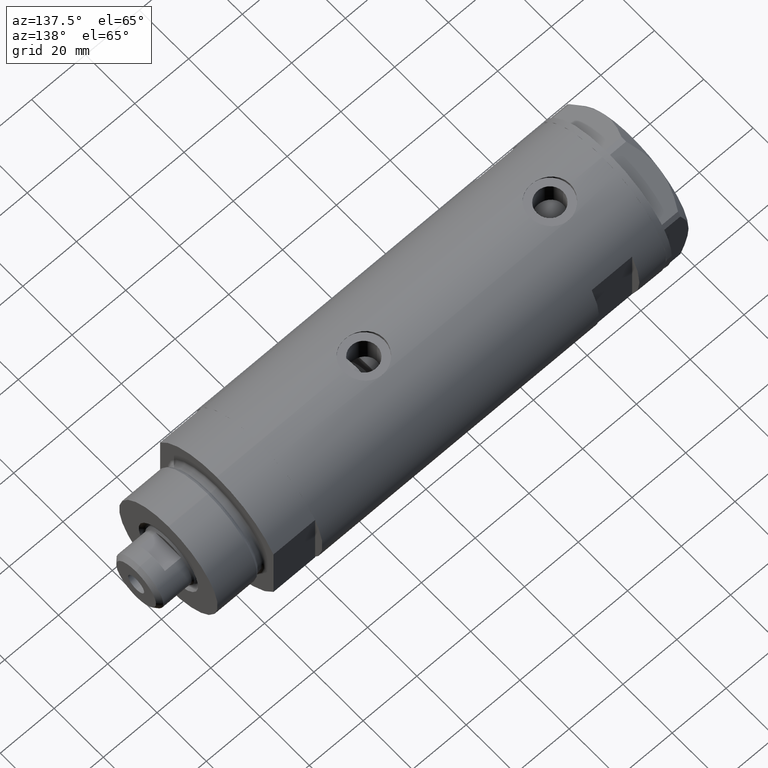
[diagram: clean part render]
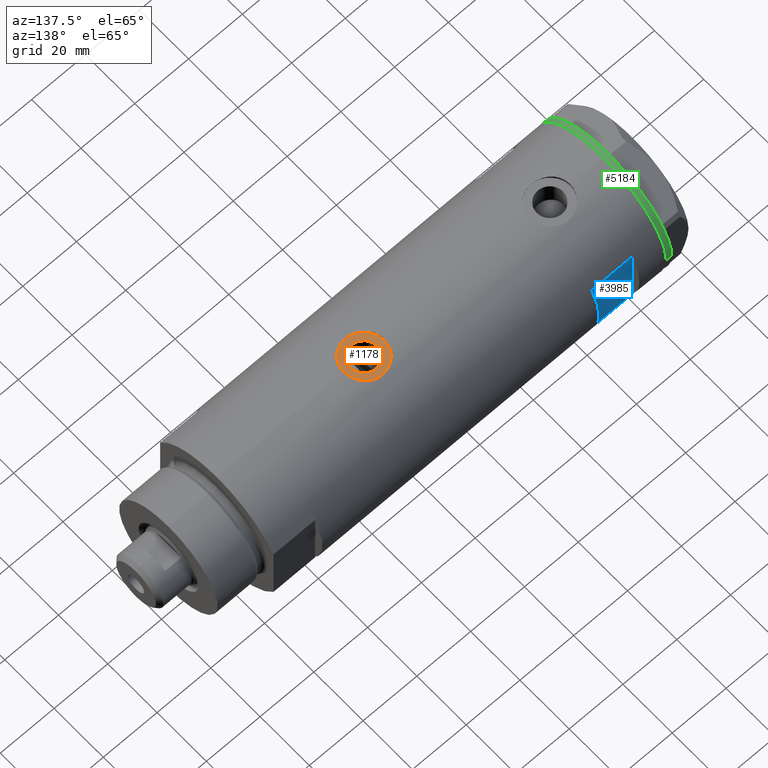
[diagram: same view with three faces highlighted in distinct colors, each labeled with its STEP entity id]
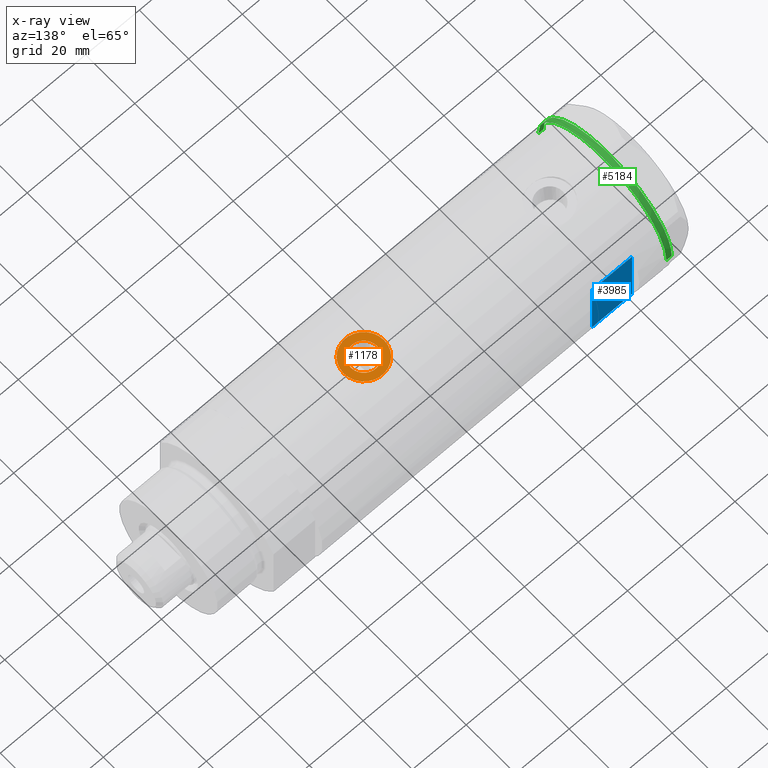
[diagram: x-ray of the same camera — body ghosted, the three highlighted faces saturated]
A machine part, auxiliary view with three faces highlighted in distinct colors.
The next image is the same camera in x-ray (body ghosted, the three faces saturated) — at least one of them is partly hidden behind the body in this view.
Their STEP definitions:

[orange] entity #1178 — the highlighted planar face has unit normal (0, 0, 1).
#174 = ORIENTED_EDGE ( 'NONE', *, *, #440, .F. ) ;
#217 = CIRCLE ( 'NONE', #3491, 4.865000000000001101 ) ;
#322 = FACE_OUTER_BOUND ( 'NONE', #427, .T. ) ;
#365 = CARTESIAN_POINT ( 'NONE',  ( 24.80000000000000426, 0.000000000000000000, -24.75000000000000000 ) ) ;
#427 = EDGE_LOOP ( 'NONE', ( #1320, #845 ) ) ;
#440 = EDGE_CURVE ( 'NONE', #2011, #3197, #1627, .T. ) ;
#441 = CARTESIAN_POINT ( 'NONE',  ( 24.80000000000000426, 9.184850993605147944E-16, -17.25000000000000000 ) ) ;
#740 = DIRECTION ( 'NONE',  ( 1.000000000000000000, 0.000000000000000000, 0.000000000000000000 ) ) ;
#815 = CARTESIAN_POINT ( 'NONE',  ( 24.80000000000000426, 0.000000000000000000, -24.75000000000000000 ) ) ;
#845 = ORIENTED_EDGE ( 'NONE', *, *, #946, .T. ) ;
#946 = EDGE_CURVE ( 'NONE', #1312, #2045, #3074, .T. ) ;
#1165 = EDGE_CURVE ( 'NONE', #3197, #2011, #217, .T. ) ;
#1178 = ADVANCED_FACE ( 'NONE', ( #3931, #322 ), #4351, .T. ) ;
#1312 = VERTEX_POINT ( 'NONE', #441 ) ;
#1320 = ORIENTED_EDGE ( 'NONE', *, *, #3925, .T. ) ;
#1408 = CARTESIAN_POINT ( 'NONE',  ( 24.80000000000000426, 0.000000000000000000, -24.75000000000000000 ) ) ;
#1477 = AXIS2_PLACEMENT_3D ( 'NONE', #365, #740, #1976 ) ;
#1627 = CIRCLE ( 'NONE', #4903, 4.865000000000001101 ) ;
#1976 = DIRECTION ( 'NONE',  ( 0.000000000000000000, 0.000000000000000000, -1.000000000000000000 ) ) ;
#2011 = VERTEX_POINT ( 'NONE', #4677 ) ;
#2045 = VERTEX_POINT ( 'NONE', #2764 ) ;
#2154 = CIRCLE ( 'NONE', #3832, 7.500000000000000000 ) ;
#2166 = DIRECTION ( 'NONE',  ( 1.000000000000000000, 0.000000000000000000, 0.000000000000000000 ) ) ;
#2489 = DIRECTION ( 'NONE',  ( 1.000000000000000000, 0.000000000000000000, 0.000000000000000000 ) ) ;
#2614 = DIRECTION ( 'NONE',  ( 0.000000000000000000, 0.000000000000000000, -1.000000000000000000 ) ) ;
#2764 = CARTESIAN_POINT ( 'NONE',  ( 24.80000000000000426, 0.000000000000000000, -32.25000000000000000 ) ) ;
#3074 = CIRCLE ( 'NONE', #3569, 7.500000000000000000 ) ;
#3197 = VERTEX_POINT ( 'NONE', #4712 ) ;
#3213 = EDGE_LOOP ( 'NONE', ( #174, #3671 ) ) ;
#3491 = AXIS2_PLACEMENT_3D ( 'NONE', #815, #3953, #5130 ) ;
#3569 = AXIS2_PLACEMENT_3D ( 'NONE', #4929, #2489, #3748 ) ;
#3671 = ORIENTED_EDGE ( 'NONE', *, *, #1165, .F. ) ;
#3748 = DIRECTION ( 'NONE',  ( 0.000000000000000000, 0.000000000000000000, -1.000000000000000000 ) ) ;
#3832 = AXIS2_PLACEMENT_3D ( 'NONE', #3946, #5066, #5098 ) ;
#3925 = EDGE_CURVE ( 'NONE', #2045, #1312, #2154, .T. ) ;
#3931 = FACE_BOUND ( 'NONE', #3213, .T. ) ;
#3946 = CARTESIAN_POINT ( 'NONE',  ( 24.80000000000000426, 0.000000000000000000, -24.75000000000000000 ) ) ;
#3953 = DIRECTION ( 'NONE',  ( 1.000000000000000000, 0.000000000000000000, 0.000000000000000000 ) ) ;
#4351 = PLANE ( 'NONE',  #1477 ) ;
#4677 = CARTESIAN_POINT ( 'NONE',  ( 24.80000000000000426, 0.000000000000000000, -29.61500000000000199 ) ) ;
#4712 = CARTESIAN_POINT ( 'NONE',  ( 24.80000000000000426, 5.957906677851871624E-16, -19.88500000000000156 ) ) ;
#4903 = AXIS2_PLACEMENT_3D ( 'NONE', #1408, #2166, #2614 ) ;
#4929 = CARTESIAN_POINT ( 'NONE',  ( 24.80000000000000426, 0.000000000000000000, -24.75000000000000000 ) ) ;
#5066 = DIRECTION ( 'NONE',  ( 1.000000000000000000, 0.000000000000000000, 0.000000000000000000 ) ) ;
#5098 = DIRECTION ( 'NONE',  ( 0.000000000000000000, 0.000000000000000000, -1.000000000000000000 ) ) ;
#5130 = DIRECTION ( 'NONE',  ( 0.000000000000000000, 0.000000000000000000, -1.000000000000000000 ) ) ;

[blue] entity #3985 — the highlighted planar face has unit normal (0, -1, -0).
#8 = EDGE_CURVE ( 'NONE', #3560, #4025, #278, .T. ) ;
#26 = DIRECTION ( 'NONE',  ( 1.000000000000000000, -0.000000000000000000, -0.000000000000000000 ) ) ;
#222 = VECTOR ( 'NONE', #1108, 1000.000000000000000 ) ;
#278 = LINE ( 'NONE', #1491, #532 ) ;
#395 = LINE ( 'NONE', #782, #222 ) ;
#532 = VECTOR ( 'NONE', #5058, 1000.000000000000000 ) ;
#583 = LINE ( 'NONE', #2005, #2564 ) ;
#782 = CARTESIAN_POINT ( 'NONE',  ( -26.00000000000000355, 23.00000000000000355, 38.94999999999999574 ) ) ;
#1085 = ORIENTED_EDGE ( 'NONE', *, *, #2966, .T. ) ;
#1100 = PLANE ( 'NONE',  #1481 ) ;
#1108 = DIRECTION ( 'NONE',  ( 1.000000000000000000, -0.000000000000000000, -0.000000000000000000 ) ) ;
#1269 = EDGE_CURVE ( 'NONE', #1704, #3560, #583, .T. ) ;
#1383 = LINE ( 'NONE', #2201, #2478 ) ;
#1481 = AXIS2_PLACEMENT_3D ( 'NONE', #2686, #3916, #5045 ) ;
#1491 = CARTESIAN_POINT ( 'NONE',  ( 12.12435565298214080, 23.00000000000000355, -63.95000000000000995 ) ) ;
#1704 = VERTEX_POINT ( 'NONE', #2574 ) ;
#2005 = CARTESIAN_POINT ( 'NONE',  ( -26.00000000000000355, 23.00000000000000355, 53.94999999999999574 ) ) ;
#2020 = ORIENTED_EDGE ( 'NONE', *, *, #8, .T. ) ;
#2047 = EDGE_LOOP ( 'NONE', ( #2020, #4346, #1085, #2963 ) ) ;
#2201 = CARTESIAN_POINT ( 'NONE',  ( -12.12435565298214080, 23.00000000000000355, -63.95000000000000995 ) ) ;
#2478 = VECTOR ( 'NONE', #3022, 1000.000000000000000 ) ;
#2564 = VECTOR ( 'NONE', #26, 1000.000000000000000 ) ;
#2574 = CARTESIAN_POINT ( 'NONE',  ( -12.12435565298214080, 23.00000000000000355, 53.94999999999999574 ) ) ;
#2658 = CARTESIAN_POINT ( 'NONE',  ( 12.12435565298213724, 23.00000000000000355, 38.94999999999999574 ) ) ;
#2686 = CARTESIAN_POINT ( 'NONE',  ( -26.00000000000000355, 23.00000000000000355, 53.94999999999999574 ) ) ;
#2963 = ORIENTED_EDGE ( 'NONE', *, *, #1269, .T. ) ;
#2966 = EDGE_CURVE ( 'NONE', #4387, #1704, #1383, .T. ) ;
#3022 = DIRECTION ( 'NONE',  ( 0.000000000000000000, 0.000000000000000000, 1.000000000000000000 ) ) ;
#3560 = VERTEX_POINT ( 'NONE', #3974 ) ;
#3582 = EDGE_CURVE ( 'NONE', #4387, #4025, #395, .T. ) ;
#3916 = DIRECTION ( 'NONE',  ( 0.000000000000000000, -1.000000000000000000, -0.000000000000000000 ) ) ;
#3974 = CARTESIAN_POINT ( 'NONE',  ( 12.12435565298214080, 23.00000000000000355, 53.94999999999999574 ) ) ;
#3985 = ADVANCED_FACE ( 'NONE', ( #4719 ), #1100, .F. ) ;
#4025 = VERTEX_POINT ( 'NONE', #2658 ) ;
#4205 = CARTESIAN_POINT ( 'NONE',  ( -12.12435565298214080, 23.00000000000000355, 38.94999999999999574 ) ) ;
#4346 = ORIENTED_EDGE ( 'NONE', *, *, #3582, .F. ) ;
#4387 = VERTEX_POINT ( 'NONE', #4205 ) ;
#4719 = FACE_OUTER_BOUND ( 'NONE', #2047, .T. ) ;
#5045 = DIRECTION ( 'NONE',  ( 0.000000000000000000, 0.000000000000000000, -1.000000000000000000 ) ) ;
#5058 = DIRECTION ( 'NONE',  ( -0.000000000000000000, -0.000000000000000000, -1.000000000000000000 ) ) ;

[green] entity #5184 — the highlighted cylindrical surface (partial cylindrical patch) has radius 26 mm, axis along (-1, -0, 0).
#95 = ORIENTED_EDGE ( 'NONE', *, *, #5074, .T. ) ;
#123 = AXIS2_PLACEMENT_3D ( 'NONE', #4229, #2629, #3421 ) ;
#152 = EDGE_CURVE ( 'NONE', #4892, #2193, #1709, .T. ) ;
#159 = CARTESIAN_POINT ( 'NONE',  ( -0.3132930502238524539, -25.99811238272274139, 0.000000000000000000 ) ) ;
#314 = CARTESIAN_POINT ( 'NONE',  ( -22.67167229899264669, -12.72773645103832507, 0.000000000000000000 ) ) ;
#344 = VERTEX_POINT ( 'NONE', #2976 ) ;
#438 = ORIENTED_EDGE ( 'NONE', *, *, #2226, .T. ) ;
#451 = EDGE_CURVE ( 'NONE', #899, #344, #3403, .T. ) ;
#477 = ORIENTED_EDGE ( 'NONE', *, *, #2343, .T. ) ;
#484 = CARTESIAN_POINT ( 'NONE',  ( 22.67167229899274616, -12.72773645103814211, 0.000000000000000000 ) ) ;
#541 = CARTESIAN_POINT ( 'NONE',  ( -0.1044411259762646482, -26.00062917530481243, 0.000000000000000000 ) ) ;
#603 = ORIENTED_EDGE ( 'NONE', *, *, #5180, .T. ) ;
#610 = DIRECTION ( 'NONE',  ( -1.000000000000000000, 0.000000000000000000, 0.000000000000000000 ) ) ;
#628 = CYLINDRICAL_SURFACE ( 'NONE', #4009, 26.00000000000000355 ) ;
#667 = CARTESIAN_POINT ( 'NONE',  ( 22.35837924876884131, -13.27037593168418717, 0.000000000000000000 ) ) ;
#676 = CARTESIAN_POINT ( 'NONE',  ( -22.35837924876856064, -13.27037593168466501, 0.000000000000000000 ) ) ;
#711 = EDGE_CURVE ( 'NONE', #2936, #899, #2395, .T. ) ;
#715 = VECTOR ( 'NONE', #2984, 1000.000000000000000 ) ;
#738 = CARTESIAN_POINT ( 'NONE',  ( -22.67167229899264669, -12.72773645103832507, 0.000000000000000000 ) ) ;
#866 = DIRECTION ( 'NONE',  ( -1.000000000000000000, 0.000000000000000000, 0.000000000000000000 ) ) ;
#899 = VERTEX_POINT ( 'NONE', #4140 ) ;
#920 = ORIENTED_EDGE ( 'NONE', *, *, #1852, .T. ) ;
#1021 = CARTESIAN_POINT ( 'NONE',  ( -22.56942594318098116, -12.90986591935703665, 0.000000000000000000 ) ) ;
#1023 = VERTEX_POINT ( 'NONE', #1062 ) ;
#1032 = CARTESIAN_POINT ( 'NONE',  ( 26.00000000000000355, 0.000000000000000000, -2.000000000000000000 ) ) ;
#1062 = CARTESIAN_POINT ( 'NONE',  ( -21.99999999999998224, -13.85640646055105485, 0.000000000000000000 ) ) ;
#1144 = ORIENTED_EDGE ( 'NONE', *, *, #451, .T. ) ;
#1149 = CARTESIAN_POINT ( 'NONE',  ( 22.35837924876884131, -13.27037593168418717, 0.000000000000000000 ) ) ;
#1297 = EDGE_CURVE ( 'NONE', #3309, #2193, #4445, .T. ) ;
#1315 = CARTESIAN_POINT ( 'NONE',  ( -26.00000000000000355, 3.184081677783118585E-15, 0.000000000000000000 ) ) ;
#1322 = AXIS2_PLACEMENT_3D ( 'NONE', #5033, #5007, #4631 ) ;
#1344 = VERTEX_POINT ( 'NONE', #3866 ) ;
#1345 = DIRECTION ( 'NONE',  ( 0.000000000000000000, 0.000000000000000000, -1.000000000000000000 ) ) ;
#1385 = AXIS2_PLACEMENT_3D ( 'NONE', #4037, #3276, #1959 ) ;
#1425 = CARTESIAN_POINT ( 'NONE',  ( -22.46498481720448481, -13.09076325594801915, 0.000000000000000000 ) ) ;
#1426 = DIRECTION ( 'NONE',  ( -0.000000000000000000, -0.000000000000000000, 1.000000000000000000 ) ) ;
#1472 = CARTESIAN_POINT ( 'NONE',  ( 0.000000000000000000, 0.000000000000000000, -2.000000000000000000 ) ) ;
#1576 = AXIS2_PLACEMENT_3D ( 'NONE', #4993, #3843, #2264 ) ;
#1600 = ORIENTED_EDGE ( 'NONE', *, *, #152, .T. ) ;
#1678 = ORIENTED_EDGE ( 'NONE', *, *, #3433, .F. ) ;
#1709 = CIRCLE ( 'NONE', #2218, 26.00000000000000355 ) ;
#1811 = AXIS2_PLACEMENT_3D ( 'NONE', #2249, #3437, #3457 ) ;
#1852 = EDGE_CURVE ( 'NONE', #3338, #3203, #2620, .T. ) ;
#1903 = CARTESIAN_POINT ( 'NONE',  ( -22.99999999999990763, -12.12435565298232021, 0.000000000000000000 ) ) ;
#1959 = DIRECTION ( 'NONE',  ( -1.000000000000000000, 0.000000000000000000, 0.000000000000000000 ) ) ;
#1988 = AXIS2_PLACEMENT_3D ( 'NONE', #3368, #3263, #4860 ) ;
#2193 = VERTEX_POINT ( 'NONE', #1315 ) ;
#2215 = CARTESIAN_POINT ( 'NONE',  ( 0.000000000000000000, 0.000000000000000000, 0.000000000000000000 ) ) ;
#2218 = AXIS2_PLACEMENT_3D ( 'NONE', #3664, #3589, #866 ) ;
#2226 = EDGE_CURVE ( 'NONE', #3865, #3968, #3762, .T. ) ;
#2247 = CIRCLE ( 'NONE', #1988, 26.00000000000000355 ) ;
#2249 = CARTESIAN_POINT ( 'NONE',  ( 0.000000000000000000, 0.000000000000000000, -2.000000000000000000 ) ) ;
#2264 = DIRECTION ( 'NONE',  ( -1.000000000000000000, 0.000000000000000000, 0.000000000000000000 ) ) ;
#2343 = EDGE_CURVE ( 'NONE', #3369, #1023, #4173, .T. ) ;
#2395 = CIRCLE ( 'NONE', #123, 26.00000000000000355 ) ;
#2424 = ORIENTED_EDGE ( 'NONE', *, *, #5036, .T. ) ;
#2474 = DIRECTION ( 'NONE',  ( 0.000000000000000000, 0.000000000000000000, -1.000000000000000000 ) ) ;
#2481 = EDGE_CURVE ( 'NONE', #3674, #4892, #4488, .T. ) ;
#2528 = CARTESIAN_POINT ( 'NONE',  ( 0.000000000000000000, 0.000000000000000000, 0.000000000000000000 ) ) ;
#2529 = ORIENTED_EDGE ( 'NONE', *, *, #1297, .F. ) ;
#2549 = DIRECTION ( 'NONE',  ( -1.000000000000000000, 0.000000000000000000, 0.000000000000000000 ) ) ;
#2620 = LINE ( 'NONE', #1032, #715 ) ;
#2629 = DIRECTION ( 'NONE',  ( 0.000000000000000000, 0.000000000000000000, -1.000000000000000000 ) ) ;
#2656 = CIRCLE ( 'NONE', #1811, 26.00000000000000355 ) ;
#2796 = CARTESIAN_POINT ( 'NONE',  ( 22.46498481720470863, -13.09076325594764079, 0.000000000000000000 ) ) ;
#2827 = CARTESIAN_POINT ( 'NONE',  ( 22.56942594318113748, -12.90986591935675065, 0.000000000000000000 ) ) ;
#2849 = ORIENTED_EDGE ( 'NONE', *, *, #4000, .T. ) ;
#2919 = CARTESIAN_POINT ( 'NONE',  ( 0.3132930502243174709, -25.99811238272273428, 0.000000000000000000 ) ) ;
#2936 = VERTEX_POINT ( 'NONE', #667 ) ;
#2976 = CARTESIAN_POINT ( 'NONE',  ( 1.000000000000106803, -25.98076211353316367, 0.000000000000000000 ) ) ;
#2984 = DIRECTION ( 'NONE',  ( -0.000000000000000000, -0.000000000000000000, 1.000000000000000000 ) ) ;
#2987 = VERTEX_POINT ( 'NONE', #4615 ) ;
#3005 = ORIENTED_EDGE ( 'NONE', *, *, #5050, .T. ) ;
#3028 = DIRECTION ( 'NONE',  ( 0.000000000000000000, 0.000000000000000000, -1.000000000000000000 ) ) ;
#3147 = AXIS2_PLACEMENT_3D ( 'NONE', #2215, #3820, #610 ) ;
#3203 = VERTEX_POINT ( 'NONE', #4328 ) ;
#3234 = VECTOR ( 'NONE', #4051, 1000.000000000000000 ) ;
#3263 = DIRECTION ( 'NONE',  ( 0.000000000000000000, 0.000000000000000000, -1.000000000000000000 ) ) ;
#3268 = CARTESIAN_POINT ( 'NONE',  ( -26.00000000000000355, 3.184081677783118585E-15, -2.000000000000000000 ) ) ;
#3276 = DIRECTION ( 'NONE',  ( 0.000000000000000000, 0.000000000000000000, -1.000000000000000000 ) ) ;
#3309 = VERTEX_POINT ( 'NONE', #3636 ) ;
#3338 = VERTEX_POINT ( 'NONE', #4842 ) ;
#3368 = CARTESIAN_POINT ( 'NONE',  ( 0.000000000000000000, 0.000000000000000000, 0.000000000000000000 ) ) ;
#3369 = VERTEX_POINT ( 'NONE', #4549 ) ;
#3372 = B_SPLINE_CURVE_WITH_KNOTS ( 'NONE', 3,
 ( #4378, #2827, #2796, #1149 ),
 .UNSPECIFIED., .F., .F.,
 ( 4, 4 ),
 ( 0.000000000000000000, 1.000000000000000000 ),
 .UNSPECIFIED. ) ;
#3403 = CIRCLE ( 'NONE', #3147, 26.00000000000000355 ) ;
#3421 = DIRECTION ( 'NONE',  ( -1.000000000000000000, 0.000000000000000000, 0.000000000000000000 ) ) ;
#3428 = CIRCLE ( 'NONE', #4262, 26.00000000000000355 ) ;
#3433 = EDGE_CURVE ( 'NONE', #3338, #3309, #2656, .T. ) ;
#3437 = DIRECTION ( 'NONE',  ( 0.000000000000000000, 0.000000000000000000, -1.000000000000000000 ) ) ;
#3457 = DIRECTION ( 'NONE',  ( -1.000000000000000000, 0.000000000000000000, 0.000000000000000000 ) ) ;
#3502 = AXIS2_PLACEMENT_3D ( 'NONE', #4620, #3028, #4594 ) ;
#3589 = DIRECTION ( 'NONE',  ( 0.000000000000000000, 0.000000000000000000, -1.000000000000000000 ) ) ;
#3636 = CARTESIAN_POINT ( 'NONE',  ( -26.00000000000000355, 3.184081677783118585E-15, -2.000000000000000000 ) ) ;
#3664 = CARTESIAN_POINT ( 'NONE',  ( 0.000000000000000000, 0.000000000000000000, 0.000000000000000000 ) ) ;
#3674 = VERTEX_POINT ( 'NONE', #738 ) ;
#3721 = EDGE_LOOP ( 'NONE', ( #2529, #1678, #920, #2424, #4995, #3773, #5071, #1144, #603, #438, #3005, #477, #95, #2849, #4076, #1600 ) ) ;
#3762 = B_SPLINE_CURVE_WITH_KNOTS ( 'NONE', 3,
 ( #2919, #4232, #541, #159 ),
 .UNSPECIFIED., .F., .F.,
 ( 4, 4 ),
 ( 0.000000000000000000, 1.000000000000000000 ),
 .UNSPECIFIED. ) ;
#3763 = CIRCLE ( 'NONE', #1576, 26.00000000000000355 ) ;
#3773 = ORIENTED_EDGE ( 'NONE', *, *, #4546, .T. ) ;
#3812 = CARTESIAN_POINT ( 'NONE',  ( 0.3132930502243174709, -25.99811238272273428, 0.000000000000000000 ) ) ;
#3820 = DIRECTION ( 'NONE',  ( 0.000000000000000000, 0.000000000000000000, -1.000000000000000000 ) ) ;
#3843 = DIRECTION ( 'NONE',  ( 0.000000000000000000, 0.000000000000000000, -1.000000000000000000 ) ) ;
#3865 = VERTEX_POINT ( 'NONE', #3812 ) ;
#3866 = CARTESIAN_POINT ( 'NONE',  ( -22.35837924876856064, -13.27037593168466501, 0.000000000000000000 ) ) ;
#3885 = DIRECTION ( 'NONE',  ( 1.000000000000000000, 0.000000000000000000, 0.000000000000000000 ) ) ;
#3968 = VERTEX_POINT ( 'NONE', #4309 ) ;
#4000 = EDGE_CURVE ( 'NONE', #1344, #3674, #4873, .T. ) ;
#4009 = AXIS2_PLACEMENT_3D ( 'NONE', #1472, #1426, #3885 ) ;
#4037 = CARTESIAN_POINT ( 'NONE',  ( 0.000000000000000000, 0.000000000000000000, 0.000000000000000000 ) ) ;
#4051 = DIRECTION ( 'NONE',  ( -0.000000000000000000, -0.000000000000000000, 1.000000000000000000 ) ) ;
#4075 = DIRECTION ( 'NONE',  ( -1.000000000000000000, 0.000000000000000000, 0.000000000000000000 ) ) ;
#4076 = ORIENTED_EDGE ( 'NONE', *, *, #2481, .T. ) ;
#4140 = CARTESIAN_POINT ( 'NONE',  ( 22.00000000000017053, -13.85640646055075464, 0.000000000000000000 ) ) ;
#4173 = CIRCLE ( 'NONE', #3502, 26.00000000000000355 ) ;
#4229 = CARTESIAN_POINT ( 'NONE',  ( 0.000000000000000000, 0.000000000000000000, 0.000000000000000000 ) ) ;
#4232 = CARTESIAN_POINT ( 'NONE',  ( 0.1044411259767168837, -26.00062917530480888, 0.000000000000000000 ) ) ;
#4234 = FACE_OUTER_BOUND ( 'NONE', #3721, .T. ) ;
#4262 = AXIS2_PLACEMENT_3D ( 'NONE', #4542, #2474, #4075 ) ;
#4309 = CARTESIAN_POINT ( 'NONE',  ( -0.3132930502238524539, -25.99811238272274139, 0.000000000000000000 ) ) ;
#4328 = CARTESIAN_POINT ( 'NONE',  ( 26.00000000000000355, 0.000000000000000000, 0.000000000000000000 ) ) ;
#4378 = CARTESIAN_POINT ( 'NONE',  ( 22.67167229899274616, -12.72773645103814211, 0.000000000000000000 ) ) ;
#4445 = LINE ( 'NONE', #3268, #3234 ) ;
#4488 = CIRCLE ( 'NONE', #1385, 26.00000000000000355 ) ;
#4542 = CARTESIAN_POINT ( 'NONE',  ( 0.000000000000000000, 0.000000000000000000, 0.000000000000000000 ) ) ;
#4546 = EDGE_CURVE ( 'NONE', #4962, #2936, #3372, .T. ) ;
#4549 = CARTESIAN_POINT ( 'NONE',  ( -0.9999999999997406519, -25.98076211353317433, 0.000000000000000000 ) ) ;
#4592 = CIRCLE ( 'NONE', #1322, 26.00000000000000355 ) ;
#4594 = DIRECTION ( 'NONE',  ( -1.000000000000000000, 0.000000000000000000, 0.000000000000000000 ) ) ;
#4615 = CARTESIAN_POINT ( 'NONE',  ( 23.00000000000007461, -12.12435565298200224, 0.000000000000000000 ) ) ;
#4620 = CARTESIAN_POINT ( 'NONE',  ( 0.000000000000000000, 0.000000000000000000, 0.000000000000000000 ) ) ;
#4631 = DIRECTION ( 'NONE',  ( -1.000000000000000000, 0.000000000000000000, 0.000000000000000000 ) ) ;
#4805 = EDGE_CURVE ( 'NONE', #2987, #4962, #4592, .T. ) ;
#4842 = CARTESIAN_POINT ( 'NONE',  ( 26.00000000000000355, 0.000000000000000000, -2.000000000000000000 ) ) ;
#4860 = DIRECTION ( 'NONE',  ( -1.000000000000000000, 0.000000000000000000, 0.000000000000000000 ) ) ;
#4873 = B_SPLINE_CURVE_WITH_KNOTS ( 'NONE', 3,
 ( #676, #1425, #1021, #314 ),
 .UNSPECIFIED., .F., .F.,
 ( 4, 4 ),
 ( 0.000000000000000000, 1.000000000000000000 ),
 .UNSPECIFIED. ) ;
#4892 = VERTEX_POINT ( 'NONE', #1903 ) ;
#4962 = VERTEX_POINT ( 'NONE', #484 ) ;
#4993 = CARTESIAN_POINT ( 'NONE',  ( 0.000000000000000000, 0.000000000000000000, 0.000000000000000000 ) ) ;
#4995 = ORIENTED_EDGE ( 'NONE', *, *, #4805, .T. ) ;
#5007 = DIRECTION ( 'NONE',  ( 0.000000000000000000, 0.000000000000000000, -1.000000000000000000 ) ) ;
#5033 = CARTESIAN_POINT ( 'NONE',  ( 0.000000000000000000, 0.000000000000000000, 0.000000000000000000 ) ) ;
#5036 = EDGE_CURVE ( 'NONE', #3203, #2987, #2247, .T. ) ;
#5050 = EDGE_CURVE ( 'NONE', #3968, #3369, #5099, .T. ) ;
#5071 = ORIENTED_EDGE ( 'NONE', *, *, #711, .T. ) ;
#5074 = EDGE_CURVE ( 'NONE', #1023, #1344, #3428, .T. ) ;
#5099 = CIRCLE ( 'NONE', #5176, 26.00000000000000355 ) ;
#5176 = AXIS2_PLACEMENT_3D ( 'NONE', #2528, #1345, #2549 ) ;
#5180 = EDGE_CURVE ( 'NONE', #344, #3865, #3763, .T. ) ;
#5184 = ADVANCED_FACE ( 'NONE', ( #4234 ), #628, .T. ) ;